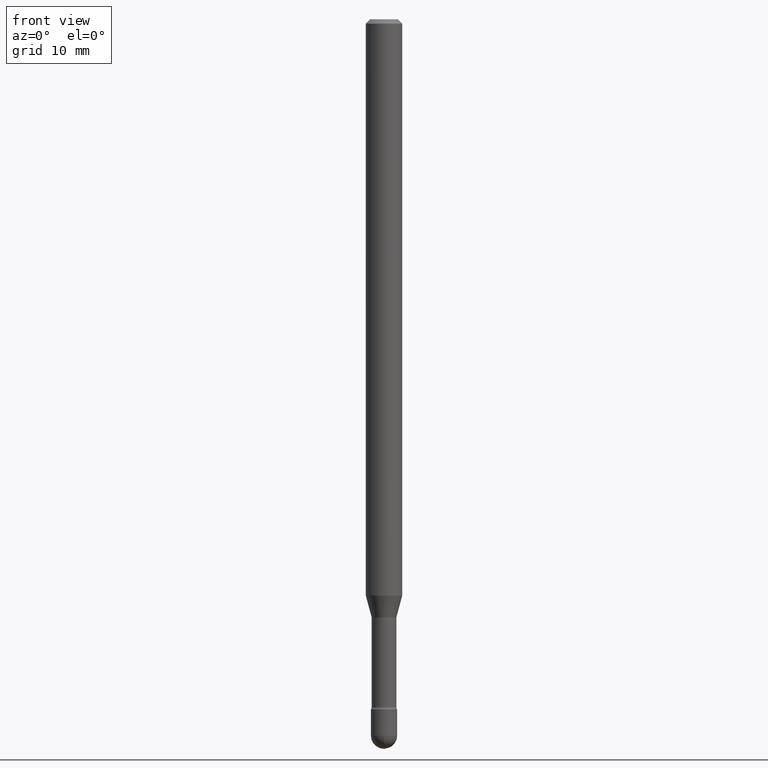
[diagram: clean part render]
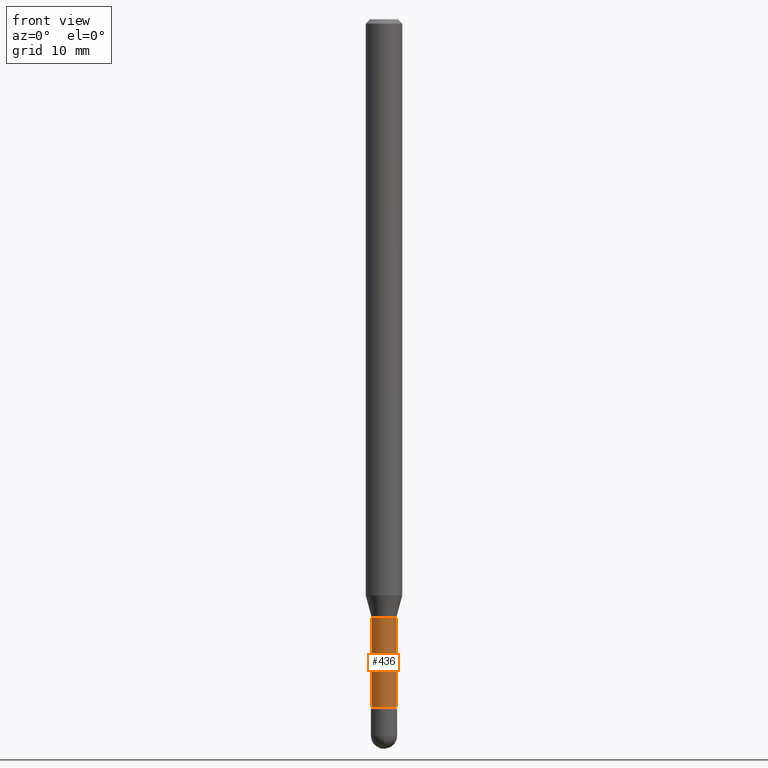
[diagram: same view with one face highlighted and labeled with its STEP entity id]
A machine part, front view. The second image highlights one B-rep face of the part: STEP entity #436.
In plain terms, the highlighted cylindrical surface (edge-blend (fillet) strip) has radius 1.0744 mm, axis along (-0, 0, 1).
Its self-contained STEP definition (entity closure, byte-faithful):
#15 = CARTESIAN_POINT ( 'NONE',  ( 0.04229999999999999732, -8.522756739348924956E-15, -2.356414547187247521 ) ) ;
#27 = AXIS2_PLACEMENT_3D ( 'NONE', #296, #338, #32 ) ;
#32 = DIRECTION ( 'NONE',  ( 1.000000000000000000, -6.982962677686266711E-15, 0.000000000000000000 ) ) ;
#41 = DIRECTION ( 'NONE',  ( 1.000000000000000000, -6.982962677686267499E-15, 0.000000000000000000 ) ) ;
#49 = DIRECTION ( 'NONE',  ( -2.445468806185136597E-29, 3.491481338843145583E-15, 1.000000000000000000 ) ) ;
#54 = LINE ( 'NONE', #227, #489 ) ;
#67 = DIRECTION ( 'NONE',  ( -2.445468806185136597E-29, 3.491481338843145583E-15, 1.000000000000000000 ) ) ;
#84 = EDGE_LOOP ( 'NONE', ( #87, #234, #235, #372 ) ) ;
#86 = DIRECTION ( 'NONE',  ( -2.445468806185136877E-29, 3.491481338843145188E-15, 1.000000000000000000 ) ) ;
#87 = ORIENTED_EDGE ( 'NONE', *, *, #260, .F. ) ;
#94 = CYLINDRICAL_SURFACE ( 'NONE', #216, 0.04229999999999999732 ) ;
#127 = VECTOR ( 'NONE', #86, 39.37007874015748143 ) ;
#135 = VERTEX_POINT ( 'NONE', #562 ) ;
#149 = CIRCLE ( 'NONE', #27, 0.04229999999999999732 ) ;
#172 = CARTESIAN_POINT ( 'NONE',  ( -0.04229999999999999732, -7.932213488064133495E-15, -2.356414547187247521 ) ) ;
#216 = AXIS2_PLACEMENT_3D ( 'NONE', #456, #67, #241 ) ;
#223 = EDGE_CURVE ( 'NONE', #135, #360, #533, .T. ) ;
#227 = CARTESIAN_POINT ( 'NONE',  ( -0.04229999999999999732, 3.005595772265240852E-16, 4.780733988912440418E-16 ) ) ;
#234 = ORIENTED_EDGE ( 'NONE', *, *, #341, .T. ) ;
#235 = ORIENTED_EDGE ( 'NONE', *, *, #550, .T. ) ;
#241 = DIRECTION ( 'NONE',  ( 1.000000000000000000, -6.982962677686266711E-15, 4.875681250100781977E-29 ) ) ;
#260 = EDGE_CURVE ( 'NONE', #527, #135, #54, .T. ) ;
#296 = CARTESIAN_POINT ( 'NONE',  ( 5.762538269587286723E-29, -8.227377418082795508E-15, -2.356414547187247521 ) ) ;
#313 = AXIS2_PLACEMENT_3D ( 'NONE', #434, #49, #41 ) ;
#322 = CARTESIAN_POINT ( 'NONE',  ( 0.04229999999999999039, -7.459810999472655794E-15, -2.051974787463811456 ) ) ;
#338 = DIRECTION ( 'NONE',  ( -2.445468806185136597E-29, 3.491481338843145583E-15, 1.000000000000000000 ) ) ;
#341 = EDGE_CURVE ( 'NONE', #527, #368, #149, .T. ) ;
#356 = LINE ( 'NONE', #526, #127 ) ;
#360 = VERTEX_POINT ( 'NONE', #322 ) ;
#368 = VERTEX_POINT ( 'NONE', #15 ) ;
#372 = ORIENTED_EDGE ( 'NONE', *, *, #223, .F. ) ;
#381 = FACE_OUTER_BOUND ( 'NONE', #84, .T. ) ;
#403 = DIRECTION ( 'NONE',  ( -2.445468806185136877E-29, 3.491481338843145188E-15, 1.000000000000000000 ) ) ;
#434 = CARTESIAN_POINT ( 'NONE',  ( 5.018040333821126293E-29, -7.164431678206526346E-15, -2.051974787463811456 ) ) ;
#436 = ADVANCED_FACE ( 'NONE', ( #381 ), #94, .T. ) ;
#456 = CARTESIAN_POINT ( 'NONE',  ( -1.169113584055446105E-44, 1.669184350826100908E-30, 4.780733988912460139E-16 ) ) ;
#489 = VECTOR ( 'NONE', #403, 39.37007874015748143 ) ;
#526 = CARTESIAN_POINT ( 'NONE',  ( 0.04229999999999999732, -2.953793212661273771E-16, 4.780733988912480847E-16 ) ) ;
#527 = VERTEX_POINT ( 'NONE', #172 ) ;
#533 = CIRCLE ( 'NONE', #313, 0.04229999999999999039 ) ;
#550 = EDGE_CURVE ( 'NONE', #368, #360, #356, .T. ) ;
#562 = CARTESIAN_POINT ( 'NONE',  ( -0.04229999999999999039, -7.395344970918138518E-15, -2.051974787463811456 ) ) ;